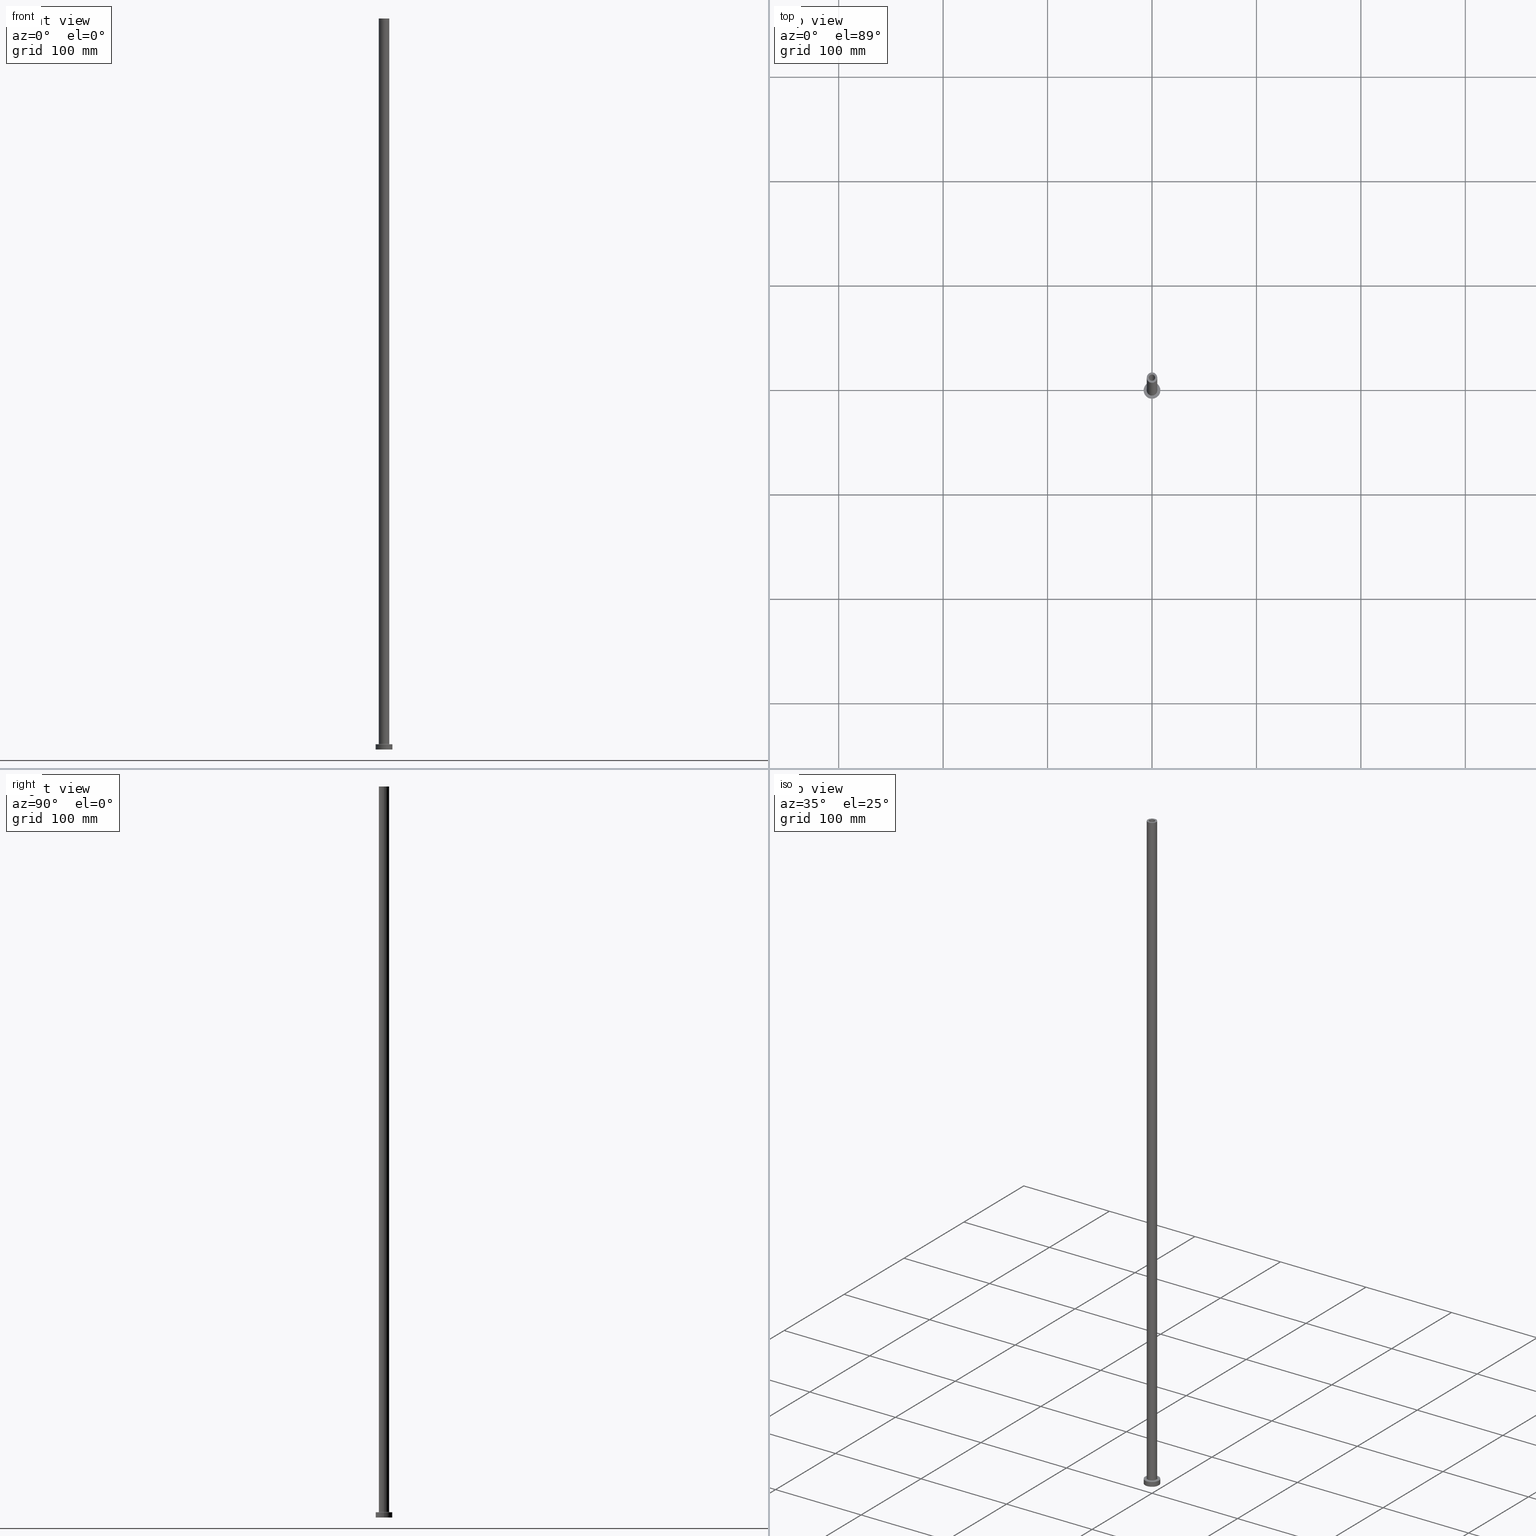
[diagram: canonical four-view strip — front | top / right | iso, engineering-drawing reading convention]
A machine part, canonical four-view strip (front | top / right | iso — engineering-drawing reading convention). The complete STEP part file that produces these views, byte-faithful:
ISO-10303-21;
HEADER;
FILE_DESCRIPTION (( 'STEP AP203' ),
    '1' );
FILE_NAME ('5fc4.STEP',
    '2023-02-13T15:29:07',
    ( '' ),
    ( '' ),
    'SwSTEP 2.0',
    'SolidWorks 2019',
    '' );
FILE_SCHEMA (( 'CONFIG_CONTROL_DESIGN' ));
ENDSEC;

DATA;
#1 = FACE_BOUND ( 'NONE', #67, .T. ) ;
#2 = VERTEX_POINT ( 'NONE', #197 ) ;
#3 = PERSON_AND_ORGANIZATION ( #171, #285 ) ;
#4 = CARTESIAN_POINT ( 'NONE',  ( -3.150000000000000355, 0.000000000000000000, 0.000000000000000000 ) ) ;
#5 = ORIENTED_EDGE ( 'NONE', *, *, #411, .F. ) ;
#6 = CALENDAR_DATE ( 2023, 13, 2 ) ;
#7 = AXIS2_PLACEMENT_3D ( 'NONE', #39, #359, #182 ) ;
#8 = CARTESIAN_POINT ( 'NONE',  ( 8.000000000000000000, 9.797174393178825657E-16, 5.000000000000000000 ) ) ;
#9 = EDGE_LOOP ( 'NONE', ( #384, #28 ) ) ;
#10 = CARTESIAN_POINT ( 'NONE',  ( -8.000000000000000000, 0.000000000000000000, 5.000000000000000000 ) ) ;
#11 = ORIENTED_EDGE ( 'NONE', *, *, #102, .T. ) ;
#12 = PERSON_AND_ORGANIZATION_ROLE ( 'design_owner' ) ;
#13 =( NAMED_UNIT ( * ) SI_UNIT ( $, .STERADIAN. ) SOLID_ANGLE_UNIT ( ) );
#14 = ORIENTED_EDGE ( 'NONE', *, *, #186, .T. ) ;
#15 = DATE_AND_TIME ( #338, #445 ) ;
#16 = AXIS2_PLACEMENT_3D ( 'NONE', #321, #458, #427 ) ;
#17 = CARTESIAN_POINT ( 'NONE',  ( 0.000000000000000000, 0.000000000000000000, 700.0000000000000000 ) ) ;
#18 = ADVANCED_FACE ( 'NONE', ( #315 ), #91, .T. ) ;
#19 = FACE_OUTER_BOUND ( 'NONE', #431, .T. ) ;
#20 = CARTESIAN_POINT ( 'NONE',  ( 8.000000000000000000, 9.797174393178825657E-16, 0.000000000000000000 ) ) ;
#21 = AXIS2_PLACEMENT_3D ( 'NONE', #255, #187, #334 ) ;
#22 = DIRECTION ( 'NONE',  ( 0.000000000000000000, 0.000000000000000000, 1.000000000000000000 ) ) ;
#23 = DIRECTION ( 'NONE',  ( 0.000000000000000000, 0.000000000000000000, 1.000000000000000000 ) ) ;
#24 = LOCAL_TIME ( 16, 29, 7.000000000000000000, #310 ) ;
#25 = VERTEX_POINT ( 'NONE', #417 ) ;
#26 = FACE_OUTER_BOUND ( 'NONE', #403, .T. ) ;
#27 = DIRECTION ( 'NONE',  ( 1.000000000000000000, 0.000000000000000000, 0.000000000000000000 ) ) ;
#28 = ORIENTED_EDGE ( 'NONE', *, *, #267, .F. ) ;
#29 = APPROVAL ( #222, 'NEUR�EN�' ) ;
#30 = DIRECTION ( 'NONE',  ( 0.000000000000000000, 0.000000000000000000, 1.000000000000000000 ) ) ;
#31 = AXIS2_PLACEMENT_3D ( 'NONE', #159, #92, #409 ) ;
#32 = ADVANCED_FACE ( 'NONE', ( #376 ), #450, .F. ) ;
#33 = DIRECTION ( 'NONE',  ( 1.000000000000000000, 0.000000000000000000, 0.000000000000000000 ) ) ;
#34 = EDGE_LOOP ( 'NONE', ( #14, #397 ) ) ;
#35 = APPLICATION_PROTOCOL_DEFINITION ( 'international standard', 'config_control_design', 1994, #305 ) ;
#36 = CARTESIAN_POINT ( 'NONE',  ( -5.000000000000000000, 0.000000000000000000, 5.499999999999949374 ) ) ;
#37 = VERTEX_POINT ( 'NONE', #236 ) ;
#38 = DATE_AND_TIME ( #304, #389 ) ;
#39 = CARTESIAN_POINT ( 'NONE',  ( 0.000000000000000000, 0.000000000000000000, 5.000000000000000000 ) ) ;
#40 = ORIENTED_EDGE ( 'NONE', *, *, #314, .F. ) ;
#41 = CARTESIAN_POINT ( 'NONE',  ( 0.000000000000000000, 0.000000000000000000, 0.000000000000000000 ) ) ;
#42 = CLOSED_SHELL ( 'NONE', ( #289, #190, #32, #364, #161, #18, #212, #172, #246, #346, #226, #294, #259, #196 ) ) ;
#43 = CIRCLE ( 'NONE', #148, 5.000000000000000000 ) ;
#44 = DIRECTION ( 'NONE',  ( -0.000000000000000000, -0.000000000000000000, -1.000000000000000000 ) ) ;
#45 = VERTEX_POINT ( 'NONE', #340 ) ;
#46 = ORIENTED_EDGE ( 'NONE', *, *, #363, .T. ) ;
#47 = APPLICATION_PROTOCOL_DEFINITION ( 'international standard', 'config_control_design', 1994, #351 ) ;
#48 = APPROVAL ( #331, 'NEUR�EN�' ) ;
#49 = DIRECTION ( 'NONE',  ( 0.000000000000000000, 0.000000000000000000, 1.000000000000000000 ) ) ;
#50 = EDGE_CURVE ( 'NONE', #434, #37, #405, .T. ) ;
#51 = AXIS2_PLACEMENT_3D ( 'NONE', #414, #162, #155 ) ;
#52 = CC_DESIGN_APPROVAL ( #48, ( #200 ) ) ;
#53 = FACE_OUTER_BOUND ( 'NONE', #115, .T. ) ;
#54 = EDGE_CURVE ( 'NONE', #373, #367, #63, .T. ) ;
#55 = DIRECTION ( 'NONE',  ( -0.000000000000000000, -0.000000000000000000, -1.000000000000000000 ) ) ;
#56 = CIRCLE ( 'NONE', #94, 5.000000000000000000 ) ;
#57 = DIRECTION ( 'NONE',  ( 1.000000000000000000, 0.000000000000000000, 0.000000000000000000 ) ) ;
#58 = CARTESIAN_POINT ( 'NONE',  ( 0.000000000000000000, 0.000000000000000000, 5.499999999999949374 ) ) ;
#59 = EDGE_CURVE ( 'NONE', #137, #104, #168, .T. ) ;
#60 = DIRECTION ( 'NONE',  ( 1.000000000000000000, 0.000000000000000000, 0.000000000000000000 ) ) ;
#61 = ORIENTED_EDGE ( 'NONE', *, *, #308, .F. ) ;
#62 = DIRECTION ( 'NONE',  ( -0.000000000000000000, -0.000000000000000000, -1.000000000000000000 ) ) ;
#63 = CIRCLE ( 'NONE', #110, 3.000000000000000444 ) ;
#64 = ORIENTED_EDGE ( 'NONE', *, *, #54, .T. ) ;
#65 = MANIFOLD_SOLID_BREP ( 'Odebrat vysunut�m4', #42 ) ;
#66 = DIRECTION ( 'NONE',  ( 0.000000000000000000, 0.000000000000000000, -1.000000000000000000 ) ) ;
#67 = EDGE_LOOP ( 'NONE', ( #211, #302 ) ) ;
#68 = UNCERTAINTY_MEASURE_WITH_UNIT (LENGTH_MEASURE( 1.000000000000000082E-05 ), #117, 'distance_accuracy_value', 'NONE');
#69 = CARTESIAN_POINT ( 'NONE',  ( 0.000000000000000000, 0.000000000000000000, 700.0000000000000000 ) ) ;
#70 = ORIENTED_EDGE ( 'NONE', *, *, #425, .F. ) ;
#71 = DIRECTION ( 'NONE',  ( -1.000000000000000000, 0.000000000000000000, 0.000000000000000000 ) ) ;
#72 = ORIENTED_EDGE ( 'NONE', *, *, #279, .T. ) ;
#73 = CIRCLE ( 'NONE', #413, 5.500000000000000000 ) ;
#74 = CARTESIAN_POINT ( 'NONE',  ( -5.500000000000000000, 6.735557395310442023E-16, 4.999999999999975131 ) ) ;
#75 = ORIENTED_EDGE ( 'NONE', *, *, #123, .F. ) ;
#76 = SHAPE_DEFINITION_REPRESENTATION ( #240, #218 ) ;
#77 = DIRECTION ( 'NONE',  ( -0.000000000000000000, -0.000000000000000000, -1.000000000000000000 ) ) ;
#78 = ORIENTED_EDGE ( 'NONE', *, *, #270, .T. ) ;
#79 = PERSON_AND_ORGANIZATION_ROLE ( 'classification_officer' ) ;
#80 = DIRECTION ( 'NONE',  ( 0.000000000000000000, 0.000000000000000000, 1.000000000000000000 ) ) ;
#81 = ORIENTED_EDGE ( 'NONE', *, *, #324, .F. ) ;
#82 = APPROVAL_ROLE ( '' ) ;
#83 = CC_DESIGN_APPROVAL ( #230, ( #165 ) ) ;
#84 = CARTESIAN_POINT ( 'NONE',  ( 0.000000000000000000, 0.000000000000000000, 5.499999999999949374 ) ) ;
#85 = ORIENTED_EDGE ( 'NONE', *, *, #208, .F. ) ;
#86 = PERSON_AND_ORGANIZATION ( #171, #285 ) ;
#87 = EDGE_CURVE ( 'NONE', #367, #2, #311, .T. ) ;
#88 = DIRECTION ( 'NONE',  ( 0.000000000000000000, 0.000000000000000000, -1.000000000000000000 ) ) ;
#89 = CARTESIAN_POINT ( 'NONE',  ( 0.000000000000000000, 0.000000000000000000, 0.000000000000000000 ) ) ;
#90 = AXIS2_PLACEMENT_3D ( 'NONE', #169, #242, #430 ) ;
#91 = CYLINDRICAL_SURFACE ( 'NONE', #31, 8.000000000000000000 ) ;
#92 = DIRECTION ( 'NONE',  ( -0.000000000000000000, -0.000000000000000000, -1.000000000000000000 ) ) ;
#93 = CARTESIAN_POINT ( 'NONE',  ( 0.000000000000000000, 0.000000000000000000, 663.9095454429503889 ) ) ;
#94 = AXIS2_PLACEMENT_3D ( 'NONE', #84, #30, #33 ) ;
#95 = AXIS2_PLACEMENT_3D ( 'NONE', #89, #272, #275 ) ;
#96 = FACE_BOUND ( 'NONE', #400, .T. ) ;
#97 = PRODUCT_DEFINITION_FORMATION_WITH_SPECIFIED_SOURCE ( 'LIBOVOLN�', '', #353, .NOT_KNOWN. ) ;
#98 = CC_DESIGN_PERSON_AND_ORGANIZATION_ASSIGNMENT ( #266, #441, ( #165 ) ) ;
#99 = DIRECTION ( 'NONE',  ( -1.000000000000000000, 0.000000000000000000, 0.000000000000000000 ) ) ;
#100 = CARTESIAN_POINT ( 'NONE',  ( 0.000000000000000000, 0.000000000000000000, 700.0000000000000000 ) ) ;
#101 = FACE_OUTER_BOUND ( 'NONE', #287, .T. ) ;
#102 = EDGE_CURVE ( 'NONE', #373, #204, #342, .T. ) ;
#103 = APPROVAL_PERSON_ORGANIZATION ( #254, #230, #398 ) ;
#104 = VERTEX_POINT ( 'NONE', #160 ) ;
#105 = DIRECTION ( 'NONE',  ( 1.000000000000000000, 0.000000000000000000, 0.000000000000000000 ) ) ;
#106 = FACE_OUTER_BOUND ( 'NONE', #217, .T. ) ;
#107 = ORIENTED_EDGE ( 'NONE', *, *, #303, .T. ) ;
#108 = DIRECTION ( 'NONE',  ( 0.000000000000000000, 0.000000000000000000, 1.000000000000000000 ) ) ;
#109 = ORIENTED_EDGE ( 'NONE', *, *, #59, .T. ) ;
#110 = AXIS2_PLACEMENT_3D ( 'NONE', #17, #121, #57 ) ;
#111 = COORDINATED_UNIVERSAL_TIME_OFFSET ( 1, 0, .AHEAD. ) ;
#112 = CARTESIAN_POINT ( 'NONE',  ( 0.000000000000000000, 0.000000000000000000, 654.9999999999998863 ) ) ;
#113 = VERTEX_POINT ( 'NONE', #341 ) ;
#114 = CARTESIAN_POINT ( 'NONE',  ( -3.000000000000000444, 0.000000000000000000, 700.0000000000000000 ) ) ;
#115 = EDGE_LOOP ( 'NONE', ( #150, #85 ) ) ;
#116 = PERSON_AND_ORGANIZATION_ROLE ( 'creator' ) ;
#117 =( LENGTH_UNIT ( ) NAMED_UNIT ( * ) SI_UNIT ( .MILLI., .METRE. ) );
#118 = ORIENTED_EDGE ( 'NONE', *, *, #141, .F. ) ;
#119 = DATE_TIME_ROLE ( 'creation_date' ) ;
#120 = VECTOR ( 'NONE', #449, 1000.000000000000000 ) ;
#121 = DIRECTION ( 'NONE',  ( 0.000000000000000000, 0.000000000000000000, 1.000000000000000000 ) ) ;
#122 = LINE ( 'NONE', #343, #250 ) ;
#123 = EDGE_CURVE ( 'NONE', #456, #45, #268, .T. ) ;
#124 = CARTESIAN_POINT ( 'NONE',  ( 0.000000000000000000, 0.000000000000000000, 5.000000000000000000 ) ) ;
#125 = CIRCLE ( 'NONE', #237, 5.000000000000000000 ) ;
#126 = CC_DESIGN_PERSON_AND_ORGANIZATION_ASSIGNMENT ( #365, #12, ( #353 ) ) ;
#127 = CYLINDRICAL_SURFACE ( 'NONE', #368, 8.000000000000000000 ) ;
#128 = CARTESIAN_POINT ( 'NONE',  ( 8.000000000000000000, 9.797174393178825657E-16, 5.000000000000000000 ) ) ;
#129 = DIRECTION ( 'NONE',  ( 1.000000000000000000, 0.000000000000000000, 0.000000000000000000 ) ) ;
#130 = CC_DESIGN_PERSON_AND_ORGANIZATION_ASSIGNMENT ( #269, #410, ( #97 ) ) ;
#131 = AXIS2_PLACEMENT_3D ( 'NONE', #93, #345, #306 ) ;
#132 = EDGE_CURVE ( 'NONE', #248, #360, #122, .T. ) ;
#133 = CYLINDRICAL_SURFACE ( 'NONE', #395, 3.150000000000000355 ) ;
#134 = CARTESIAN_POINT ( 'NONE',  ( 0.000000000000000000, 0.000000000000000000, 0.000000000000000000 ) ) ;
#135 = CC_DESIGN_PERSON_AND_ORGANIZATION_ASSIGNMENT ( #86, #79, ( #200 ) ) ;
#136 = DIRECTION ( 'NONE',  ( -0.000000000000000000, -0.000000000000000000, -1.000000000000000000 ) ) ;
#137 = VERTEX_POINT ( 'NONE', #128 ) ;
#138 = CYLINDRICAL_SURFACE ( 'NONE', #382, 5.000000000000000000 ) ;
#139 = VECTOR ( 'NONE', #55, 1000.000000000000000 ) ;
#140 = AXIS2_PLACEMENT_3D ( 'NONE', #41, #189, #192 ) ;
#141 = EDGE_CURVE ( 'NONE', #113, #37, #416, .T. ) ;
#142 = DIRECTION ( 'NONE',  ( 1.000000000000000000, 0.000000000000000000, 0.000000000000000000 ) ) ;
#143 = EDGE_LOOP ( 'NONE', ( #330, #423, #320, #355 ) ) ;
#144 = SECURITY_CLASSIFICATION_LEVEL ( 'unclassified' ) ;
#145 = CARTESIAN_POINT ( 'NONE',  ( 0.000000000000000000, 0.000000000000000000, 700.0000000000000000 ) ) ;
#146 = ORIENTED_EDGE ( 'NONE', *, *, #235, .F. ) ;
#147 = AXIS2_PLACEMENT_3D ( 'NONE', #418, #383, #105 ) ;
#148 = AXIS2_PLACEMENT_3D ( 'NONE', #296, #80, #291 ) ;
#149 = DIRECTION ( 'NONE',  ( 0.000000000000000000, 0.000000000000000000, 1.000000000000000000 ) ) ;
#150 = ORIENTED_EDGE ( 'NONE', *, *, #363, .F. ) ;
#151 = COORDINATED_UNIVERSAL_TIME_OFFSET ( 1, 0, .AHEAD. ) ;
#152 = DIRECTION ( 'NONE',  ( -0.000000000000000000, -0.000000000000000000, -1.000000000000000000 ) ) ;
#153 = ORIENTED_EDGE ( 'NONE', *, *, #208, .T. ) ;
#154 = APPROVAL_DATE_TIME ( #336, #230 ) ;
#155 = DIRECTION ( 'NONE',  ( 1.000000000000000000, 0.000000000000000000, 0.000000000000000000 ) ) ;
#156 = CIRCLE ( 'NONE', #419, 8.000000000000000000 ) ;
#157 = APPROVAL_ROLE ( '' ) ;
#158 = LOCAL_TIME ( 16, 29, 7.000000000000000000, #179 ) ;
#159 = CARTESIAN_POINT ( 'NONE',  ( 0.000000000000000000, 0.000000000000000000, 5.000000000000000000 ) ) ;
#160 = CARTESIAN_POINT ( 'NONE',  ( -8.000000000000000000, 0.000000000000000000, 5.000000000000000000 ) ) ;
#161 = ADVANCED_FACE ( 'NONE', ( #19 ), #127, .T. ) ;
#162 = DIRECTION ( 'NONE',  ( 0.000000000000000000, 0.000000000000000000, 1.000000000000000000 ) ) ;
#163 = CIRCLE ( 'NONE', #147, 8.000000000000000000 ) ;
#164 = FACE_OUTER_BOUND ( 'NONE', #143, .T. ) ;
#165 = PRODUCT_DEFINITION ( 'NEZN�M�', '', #97, #390 ) ;
#166 = DIRECTION ( 'NONE',  ( 0.000000000000000000, 0.000000000000000000, 1.000000000000000000 ) ) ;
#167 = CYLINDRICAL_SURFACE ( 'NONE', #176, 3.000000000000000444 ) ;
#168 = CIRCLE ( 'NONE', #51, 8.000000000000000000 ) ;
#169 = CARTESIAN_POINT ( 'NONE',  ( 0.000000000000000000, 0.000000000000000000, 654.9999999999998863 ) ) ;
#170 = ORIENTED_EDGE ( 'NONE', *, *, #426, .T. ) ;
#171 = PERSON ( 'NEUR�EN�', 'NEUR�EN�', 'NEUR�EN�', ('NEUR�EN�'), ('NEUR�EN�'), ('NEUR�EN�') ) ;
#172 = ADVANCED_FACE ( 'NONE', ( #274, #53 ), #198, .F. ) ;
#173 = CARTESIAN_POINT ( 'NONE',  ( 0.000000000000000000, 0.000000000000000000, 5.000000000000000000 ) ) ;
#174 = ORIENTED_EDGE ( 'NONE', *, *, #50, .T. ) ;
#175 = DIRECTION ( 'NONE',  ( 1.000000000000000000, 0.000000000000000000, 0.000000000000000000 ) ) ;
#176 = AXIS2_PLACEMENT_3D ( 'NONE', #202, #385, #347 ) ;
#177 = CYLINDRICAL_SURFACE ( 'NONE', #339, 5.000000000000000000 ) ;
#178 = EDGE_LOOP ( 'NONE', ( #317, #107 ) ) ;
#179 = COORDINATED_UNIVERSAL_TIME_OFFSET ( 1, 0, .AHEAD. ) ;
#180 = DIRECTION ( 'NONE',  ( -1.000000000000000000, 1.224646799147351482E-16, 0.000000000000000000 ) ) ;
#181 = ORIENTED_EDGE ( 'NONE', *, *, #132, .T. ) ;
#182 = DIRECTION ( 'NONE',  ( 1.000000000000000000, 0.000000000000000000, 0.000000000000000000 ) ) ;
#183 = VERTEX_POINT ( 'NONE', #20 ) ;
#184 = AXIS2_PLACEMENT_3D ( 'NONE', #379, #452, #201 ) ;
#185 = MECHANICAL_CONTEXT ( 'NONE', #305, 'mechanical' ) ;
#186 = EDGE_CURVE ( 'NONE', #248, #456, #375, .T. ) ;
#187 = DIRECTION ( 'NONE',  ( -0.000000000000000000, -0.000000000000000000, -1.000000000000000000 ) ) ;
#188 = ORIENTED_EDGE ( 'NONE', *, *, #308, .T. ) ;
#189 = DIRECTION ( 'NONE',  ( 0.000000000000000000, 0.000000000000000000, 1.000000000000000000 ) ) ;
#190 = ADVANCED_FACE ( 'NONE', ( #164 ), #229, .F. ) ;
#191 = ORIENTED_EDGE ( 'NONE', *, *, #380, .T. ) ;
#192 = DIRECTION ( 'NONE',  ( 1.000000000000000000, 0.000000000000000000, 0.000000000000000000 ) ) ;
#193 = AXIS2_PLACEMENT_3D ( 'NONE', #312, #231, #446 ) ;
#194 = CIRCLE ( 'NONE', #21, 5.500000000000000000 ) ;
#195 = CARTESIAN_POINT ( 'NONE',  ( 5.000000000000000000, 6.123233995736766282E-16, 700.0000000000000000 ) ) ;
#196 = ADVANCED_FACE ( 'NONE', ( #203 ), #319, .F. ) ;
#197 = CARTESIAN_POINT ( 'NONE',  ( 3.000000000000000444, 3.673940397442060361E-16, 654.9999999999998863 ) ) ;
#198 = PLANE ( 'NONE',  #95 ) ;
#199 = AXIS2_PLACEMENT_3D ( 'NONE', #209, #352, #27 ) ;
#200 = SECURITY_CLASSIFICATION ( '', '', #144 ) ;
#201 = DIRECTION ( 'NONE',  ( 1.000000000000000000, 0.000000000000000000, 0.000000000000000000 ) ) ;
#202 = CARTESIAN_POINT ( 'NONE',  ( 0.000000000000000000, 0.000000000000000000, 700.0000000000000000 ) ) ;
#203 = FACE_OUTER_BOUND ( 'NONE', #220, .T. ) ;
#204 = VERTEX_POINT ( 'NONE', #422 ) ;
#205 = CIRCLE ( 'NONE', #7, 8.000000000000000000 ) ;
#206 = APPROVAL_PERSON_ORGANIZATION ( #361, #48, #82 ) ;
#207 = CARTESIAN_POINT ( 'NONE',  ( -3.150000000000000355, 0.000000000000000000, 663.9095454429503889 ) ) ;
#208 = EDGE_CURVE ( 'NONE', #183, #333, #163, .T. ) ;
#209 = CARTESIAN_POINT ( 'NONE',  ( 0.000000000000000000, 0.000000000000000000, 654.9999999999998863 ) ) ;
#210 = FACE_BOUND ( 'NONE', #178, .T. ) ;
#211 = ORIENTED_EDGE ( 'NONE', *, *, #54, .F. ) ;
#212 = ADVANCED_FACE ( 'NONE', ( #96, #348 ), #454, .T. ) ;
#213 = VECTOR ( 'NONE', #88, 1000.000000000000000 ) ;
#214 = ORIENTED_EDGE ( 'NONE', *, *, #87, .F. ) ;
#215 = DATE_TIME_ROLE ( 'classification_date' ) ;
#216 = CARTESIAN_POINT ( 'NONE',  ( -3.150000000000000355, 0.000000000000000000, 654.9999999999998863 ) ) ;
#217 = EDGE_LOOP ( 'NONE', ( #260, #300, #227, #290 ) ) ;
#218 = ADVANCED_BREP_SHAPE_REPRESENTATION ( '5fc4', ( #65, #140 ), #309 ) ;
#219 = CARTESIAN_POINT ( 'NONE',  ( 0.000000000000000000, 0.000000000000000000, 700.0000000000000000 ) ) ;
#220 = EDGE_LOOP ( 'NONE', ( #214, #78, #11, #440 ) ) ;
#221 = CC_DESIGN_PERSON_AND_ORGANIZATION_ASSIGNMENT ( #401, #116, ( #97 ) ) ;
#222 = APPROVAL_STATUS ( 'not_yet_approved' ) ;
#223 = DIRECTION ( 'NONE',  ( 1.000000000000000000, 0.000000000000000000, 0.000000000000000000 ) ) ;
#224 = ORIENTED_EDGE ( 'NONE', *, *, #432, .F. ) ;
#225 = VECTOR ( 'NONE', #44, 1000.000000000000000 ) ;
#226 = ADVANCED_FACE ( 'NONE', ( #26 ), #295, .F. ) ;
#227 = ORIENTED_EDGE ( 'NONE', *, *, #314, .T. ) ;
#228 = COORDINATED_UNIVERSAL_TIME_OFFSET ( 1, 0, .AHEAD. ) ;
#229 = CYLINDRICAL_SURFACE ( 'NONE', #131, 3.150000000000000355 ) ;
#230 = APPROVAL ( #257, 'NEUR�EN�' ) ;
#231 = DIRECTION ( 'NONE',  ( 0.000000000000000000, 0.000000000000000000, 1.000000000000000000 ) ) ;
#232 = VECTOR ( 'NONE', #350, 1000.000000000000000 ) ;
#233 = CARTESIAN_POINT ( 'NONE',  ( 0.000000000000000000, 0.000000000000000000, 5.499999999999949374 ) ) ;
#234 = DIRECTION ( 'NONE',  ( 1.000000000000000000, 0.000000000000000000, 0.000000000000000000 ) ) ;
#235 = EDGE_CURVE ( 'NONE', #360, #45, #125, .T. ) ;
#236 = CARTESIAN_POINT ( 'NONE',  ( 3.150000000000000355, 3.857637417314163182E-16, 0.000000000000000000 ) ) ;
#237 = AXIS2_PLACEMENT_3D ( 'NONE', #457, #22, #129 ) ;
#238 = FACE_OUTER_BOUND ( 'NONE', #325, .T. ) ;
#239 = PLANE ( 'NONE',  #90 ) ;
#240 = PRODUCT_DEFINITION_SHAPE ( 'NONE', 'NONE',  #165 ) ;
#241 = PRODUCT_RELATED_PRODUCT_CATEGORY ( 'detail', '', ( #353 ) ) ;
#242 = DIRECTION ( 'NONE',  ( 0.000000000000000000, 0.000000000000000000, 1.000000000000000000 ) ) ;
#243 = ORIENTED_EDGE ( 'NONE', *, *, #432, .T. ) ;
#244 = CIRCLE ( 'NONE', #199, 3.000000000000000444 ) ;
#245 = DIRECTION ( 'NONE',  ( 1.000000000000000000, 0.000000000000000000, 0.000000000000000000 ) ) ;
#246 = ADVANCED_FACE ( 'NONE', ( #424 ), #138, .T. ) ;
#247 = DIRECTION ( 'NONE',  ( 1.000000000000000000, 0.000000000000000000, 0.000000000000000000 ) ) ;
#248 = VERTEX_POINT ( 'NONE', #276 ) ;
#249 = ORIENTED_EDGE ( 'NONE', *, *, #324, .T. ) ;
#250 = VECTOR ( 'NONE', #374, 1000.000000000000000 ) ;
#251 = LINE ( 'NONE', #8, #225 ) ;
#252 = VECTOR ( 'NONE', #152, 1000.000000000000000 ) ;
#253 = ORIENTED_EDGE ( 'NONE', *, *, #186, .F. ) ;
#254 = PERSON_AND_ORGANIZATION ( #171, #285 ) ;
#255 = CARTESIAN_POINT ( 'NONE',  ( 0.000000000000000000, 0.000000000000000000, 5.000000000000000000 ) ) ;
#256 = ORIENTED_EDGE ( 'NONE', *, *, #279, .F. ) ;
#257 = APPROVAL_STATUS ( 'not_yet_approved' ) ;
#258 = DIRECTION ( 'NONE',  ( 1.000000000000000000, 0.000000000000000000, -0.000000000000000000 ) ) ;
#259 = ADVANCED_FACE ( 'NONE', ( #210, #286 ), #239, .F. ) ;
#260 = ORIENTED_EDGE ( 'NONE', *, *, #392, .F. ) ;
#261 = APPROVAL_DATE_TIME ( #408, #29 ) ;
#262 = CARTESIAN_POINT ( 'NONE',  ( 0.000000000000000000, 0.000000000000000000, 5.000000000000000000 ) ) ;
#263 = ORIENTED_EDGE ( 'NONE', *, *, #235, .T. ) ;
#264 = CIRCLE ( 'NONE', #356, 0.5000000000000004441 ) ;
#265 = CIRCLE ( 'NONE', #370, 3.000000000000000444 ) ;
#266 = PERSON_AND_ORGANIZATION ( #171, #285 ) ;
#267 = EDGE_CURVE ( 'NONE', #37, #434, #455, .T. ) ;
#268 = LINE ( 'NONE', #195, #139 ) ;
#269 = PERSON_AND_ORGANIZATION ( #171, #285 ) ;
#270 = EDGE_CURVE ( 'NONE', #367, #373, #388, .T. ) ;
#271 = CARTESIAN_POINT ( 'NONE',  ( 3.150000000000000355, 3.857637417314163182E-16, 663.9095454429503889 ) ) ;
#272 = DIRECTION ( 'NONE',  ( 0.000000000000000000, 0.000000000000000000, 1.000000000000000000 ) ) ;
#273 = CC_DESIGN_SECURITY_CLASSIFICATION ( #200, ( #97 ) ) ;
#274 = FACE_BOUND ( 'NONE', #9, .T. ) ;
#275 = DIRECTION ( 'NONE',  ( 1.000000000000000000, 0.000000000000000000, -0.000000000000000000 ) ) ;
#276 = CARTESIAN_POINT ( 'NONE',  ( -5.000000000000000000, 0.000000000000000000, 700.0000000000000000 ) ) ;
#277 = DIRECTION ( 'NONE',  ( 0.000000000000000000, -1.000000000000000000, 0.000000000000000000 ) ) ;
#278 = ORIENTED_EDGE ( 'NONE', *, *, #380, .F. ) ;
#279 = EDGE_CURVE ( 'NONE', #45, #25, #437, .T. ) ;
#280 = EDGE_CURVE ( 'NONE', #439, #434, #386, .T. ) ;
#281 = DIRECTION ( 'NONE',  ( 0.000000000000000000, 0.000000000000000000, 1.000000000000000000 ) ) ;
#282 = DIRECTION ( 'NONE',  ( 0.000000000000000000, 0.000000000000000000, -1.000000000000000000 ) ) ;
#283 = ORIENTED_EDGE ( 'NONE', *, *, #377, .T. ) ;
#284 = AXIS2_PLACEMENT_3D ( 'NONE', #173, #281, #322 ) ;
#285 = ORGANIZATION ( 'NEUR�EN�', 'NEUR�EN�', '' ) ;
#286 = FACE_OUTER_BOUND ( 'NONE', #420, .T. ) ;
#287 = EDGE_LOOP ( 'NONE', ( #118, #188, #327, #174 ) ) ;
#288 = DIRECTION ( 'NONE',  ( 0.000000000000000000, 0.000000000000000000, 1.000000000000000000 ) ) ;
#289 = ADVANCED_FACE ( 'NONE', ( #238 ), #167, .F. ) ;
#290 = ORIENTED_EDGE ( 'NONE', *, *, #132, .F. ) ;
#291 = DIRECTION ( 'NONE',  ( 1.000000000000000000, 0.000000000000000000, 0.000000000000000000 ) ) ;
#292 = EDGE_LOOP ( 'NONE', ( #75, #253, #181, #263 ) ) ;
#293 = APPROVAL_DATE_TIME ( #328, #48 ) ;
#294 = ADVANCED_FACE ( 'NONE', ( #101 ), #133, .F. ) ;
#295 = TOROIDAL_SURFACE ( 'NONE', #429, 5.500000000000000000, 0.5000000000000000000 ) ;
#296 = CARTESIAN_POINT ( 'NONE',  ( 0.000000000000000000, 0.000000000000000000, 700.0000000000000000 ) ) ;
#297 = CIRCLE ( 'NONE', #421, 3.150000000000000355 ) ;
#298 = ORIENTED_EDGE ( 'NONE', *, *, #87, .T. ) ;
#299 = CARTESIAN_POINT ( 'NONE',  ( -5.500000000000000000, 6.735557395310442023E-16, 5.499999999999949374 ) ) ;
#300 = ORIENTED_EDGE ( 'NONE', *, *, #123, .T. ) ;
#301 = CARTESIAN_POINT ( 'NONE',  ( 5.000000000000000000, 6.123233995736766282E-16, 700.0000000000000000 ) ) ;
#302 = ORIENTED_EDGE ( 'NONE', *, *, #270, .F. ) ;
#303 = EDGE_CURVE ( 'NONE', #2, #204, #244, .T. ) ;
#304 = CALENDAR_DATE ( 2023, 13, 2 ) ;
#305 = APPLICATION_CONTEXT ( 'configuration controlled 3d designs of mechanical parts and assemblies' ) ;
#306 = DIRECTION ( 'NONE',  ( -1.000000000000000000, 0.000000000000000000, 0.000000000000000000 ) ) ;
#307 = AXIS2_PLACEMENT_3D ( 'NONE', #453, #277, #282 ) ;
#308 = EDGE_CURVE ( 'NONE', #113, #439, #459, .T. ) ;
#309 =( GEOMETRIC_REPRESENTATION_CONTEXT ( 3 ) GLOBAL_UNCERTAINTY_ASSIGNED_CONTEXT ( ( #68 ) ) GLOBAL_UNIT_ASSIGNED_CONTEXT ( ( #117, #393, #13 ) ) REPRESENTATION_CONTEXT ( 'NONE', 'WORKASPACE' ) );
#310 = COORDINATED_UNIVERSAL_TIME_OFFSET ( 1, 0, .AHEAD. ) ;
#311 = LINE ( 'NONE', #447, #213 ) ;
#312 = CARTESIAN_POINT ( 'NONE',  ( 0.000000000000000000, 0.000000000000000000, 700.0000000000000000 ) ) ;
#313 = VECTOR ( 'NONE', #451, 1000.000000000000000 ) ;
#314 = EDGE_CURVE ( 'NONE', #45, #360, #56, .T. ) ;
#315 = FACE_OUTER_BOUND ( 'NONE', #442, .T. ) ;
#316 = DIRECTION ( 'NONE',  ( -1.000000000000000000, 0.000000000000000000, 0.000000000000000000 ) ) ;
#317 = ORIENTED_EDGE ( 'NONE', *, *, #407, .T. ) ;
#318 = LOCAL_TIME ( 16, 29, 7.000000000000000000, #151 ) ;
#319 = CYLINDRICAL_SURFACE ( 'NONE', #16, 3.000000000000000444 ) ;
#320 = ORIENTED_EDGE ( 'NONE', *, *, #267, .T. ) ;
#321 = CARTESIAN_POINT ( 'NONE',  ( 0.000000000000000000, 0.000000000000000000, 700.0000000000000000 ) ) ;
#322 = DIRECTION ( 'NONE',  ( 1.000000000000000000, 0.000000000000000000, -0.000000000000000000 ) ) ;
#323 = AXIS2_PLACEMENT_3D ( 'NONE', #219, #288, #258 ) ;
#324 = EDGE_CURVE ( 'NONE', #360, #406, #264, .T. ) ;
#325 = EDGE_LOOP ( 'NONE', ( #64, #298, #428, #461 ) ) ;
#326 = DIRECTION ( 'NONE',  ( -0.000000000000000000, -0.000000000000000000, -1.000000000000000000 ) ) ;
#327 = ORIENTED_EDGE ( 'NONE', *, *, #280, .T. ) ;
#328 = DATE_AND_TIME ( #6, #158 ) ;
#329 = PLANE ( 'NONE',  #323 ) ;
#330 = ORIENTED_EDGE ( 'NONE', *, *, #411, .T. ) ;
#331 = APPROVAL_STATUS ( 'not_yet_approved' ) ;
#332 = CARTESIAN_POINT ( 'NONE',  ( -8.000000000000000000, 0.000000000000000000, 0.000000000000000000 ) ) ;
#333 = VERTEX_POINT ( 'NONE', #332 ) ;
#334 = DIRECTION ( 'NONE',  ( 1.000000000000000000, 0.000000000000000000, 0.000000000000000000 ) ) ;
#335 = ORIENTED_EDGE ( 'NONE', *, *, #377, .F. ) ;
#336 = DATE_AND_TIME ( #404, #318 ) ;
#337 = ORIENTED_EDGE ( 'NONE', *, *, #426, .F. ) ;
#338 = CALENDAR_DATE ( 2023, 13, 2 ) ;
#339 = AXIS2_PLACEMENT_3D ( 'NONE', #145, #326, #71 ) ;
#340 = CARTESIAN_POINT ( 'NONE',  ( 5.000000000000000000, 6.123233995736766282E-16, 5.499999999999949374 ) ) ;
#341 = CARTESIAN_POINT ( 'NONE',  ( 3.150000000000000355, 3.857637417314163182E-16, 654.9999999999998863 ) ) ;
#342 = LINE ( 'NONE', #378, #313 ) ;
#343 = CARTESIAN_POINT ( 'NONE',  ( -5.000000000000000000, 0.000000000000000000, 700.0000000000000000 ) ) ;
#344 = AXIS2_PLACEMENT_3D ( 'NONE', #134, #136, #247 ) ;
#345 = DIRECTION ( 'NONE',  ( 0.000000000000000000, 0.000000000000000000, -1.000000000000000000 ) ) ;
#346 = ADVANCED_FACE ( 'NONE', ( #1, #362 ), #329, .T. ) ;
#347 = DIRECTION ( 'NONE',  ( -1.000000000000000000, 0.000000000000000000, 0.000000000000000000 ) ) ;
#348 = FACE_OUTER_BOUND ( 'NONE', #371, .T. ) ;
#349 = AXIS2_PLACEMENT_3D ( 'NONE', #100, #166, #60 ) ;
#350 = DIRECTION ( 'NONE',  ( 0.000000000000000000, 0.000000000000000000, -1.000000000000000000 ) ) ;
#351 = APPLICATION_CONTEXT ( 'configuration controlled 3d designs of mechanical parts and assemblies' ) ;
#352 = DIRECTION ( 'NONE',  ( 0.000000000000000000, 0.000000000000000000, 1.000000000000000000 ) ) ;
#353 = PRODUCT ( '5fc4', '5fc4', '', ( #185 ) ) ;
#354 = DIRECTION ( 'NONE',  ( 0.000000000000000000, 0.000000000000000000, 1.000000000000000000 ) ) ;
#355 = ORIENTED_EDGE ( 'NONE', *, *, #280, .F. ) ;
#356 = AXIS2_PLACEMENT_3D ( 'NONE', #299, #438, #180 ) ;
#357 = AXIS2_PLACEMENT_3D ( 'NONE', #366, #354, #460 ) ;
#358 = APPROVAL_PERSON_ORGANIZATION ( #3, #29, #157 ) ;
#359 = DIRECTION ( 'NONE',  ( 0.000000000000000000, 0.000000000000000000, 1.000000000000000000 ) ) ;
#360 = VERTEX_POINT ( 'NONE', #36 ) ;
#361 = PERSON_AND_ORGANIZATION ( #171, #285 ) ;
#362 = FACE_OUTER_BOUND ( 'NONE', #34, .T. ) ;
#363 = EDGE_CURVE ( 'NONE', #333, #183, #156, .T. ) ;
#364 = ADVANCED_FACE ( 'NONE', ( #106 ), #177, .T. ) ;
#365 = PERSON_AND_ORGANIZATION ( #171, #285 ) ;
#366 = CARTESIAN_POINT ( 'NONE',  ( 0.000000000000000000, 0.000000000000000000, 654.9999999999998863 ) ) ;
#367 = VERTEX_POINT ( 'NONE', #402 ) ;
#368 = AXIS2_PLACEMENT_3D ( 'NONE', #124, #381, #412 ) ;
#369 = DIRECTION ( 'NONE',  ( 1.000000000000000000, 0.000000000000000000, 0.000000000000000000 ) ) ;
#370 = AXIS2_PLACEMENT_3D ( 'NONE', #435, #433, #223 ) ;
#371 = EDGE_LOOP ( 'NONE', ( #191, #109 ) ) ;
#372 = CC_DESIGN_DATE_AND_TIME_ASSIGNMENT ( #15, #215, ( #200 ) ) ;
#373 = VERTEX_POINT ( 'NONE', #114 ) ;
#374 = DIRECTION ( 'NONE',  ( -0.000000000000000000, -0.000000000000000000, -1.000000000000000000 ) ) ;
#375 = CIRCLE ( 'NONE', #193, 5.000000000000000000 ) ;
#376 = FACE_OUTER_BOUND ( 'NONE', #436, .T. ) ;
#377 = EDGE_CURVE ( 'NONE', #406, #25, #73, .T. ) ;
#378 = CARTESIAN_POINT ( 'NONE',  ( -3.000000000000000444, 0.000000000000000000, 700.0000000000000000 ) ) ;
#379 = CARTESIAN_POINT ( 'NONE',  ( 0.000000000000000000, 0.000000000000000000, 0.000000000000000000 ) ) ;
#380 = EDGE_CURVE ( 'NONE', #104, #137, #205, .T. ) ;
#381 = DIRECTION ( 'NONE',  ( -0.000000000000000000, -0.000000000000000000, -1.000000000000000000 ) ) ;
#382 = AXIS2_PLACEMENT_3D ( 'NONE', #69, #62, #316 ) ;
#383 = DIRECTION ( 'NONE',  ( 0.000000000000000000, 0.000000000000000000, 1.000000000000000000 ) ) ;
#384 = ORIENTED_EDGE ( 'NONE', *, *, #50, .F. ) ;
#385 = DIRECTION ( 'NONE',  ( 0.000000000000000000, 0.000000000000000000, -1.000000000000000000 ) ) ;
#386 = LINE ( 'NONE', #207, #232 ) ;
#387 = ORIENTED_EDGE ( 'NONE', *, *, #425, .T. ) ;
#388 = CIRCLE ( 'NONE', #349, 3.000000000000000444 ) ;
#389 = LOCAL_TIME ( 16, 29, 7.000000000000000000, #111 ) ;
#390 = DESIGN_CONTEXT ( 'detailed design', #351, 'design' ) ;
#391 = CARTESIAN_POINT ( 'NONE',  ( 0.000000000000000000, 0.000000000000000000, 663.9095454429503889 ) ) ;
#392 = EDGE_CURVE ( 'NONE', #456, #248, #43, .T. ) ;
#393 =( NAMED_UNIT ( * ) PLANE_ANGLE_UNIT ( ) SI_UNIT ( $, .RADIAN. ) );
#394 = ORIENTED_EDGE ( 'NONE', *, *, #59, .F. ) ;
#395 = AXIS2_PLACEMENT_3D ( 'NONE', #391, #66, #99 ) ;
#396 = LINE ( 'NONE', #10, #252 ) ;
#397 = ORIENTED_EDGE ( 'NONE', *, *, #392, .T. ) ;
#398 = APPROVAL_ROLE ( '' ) ;
#399 = CARTESIAN_POINT ( 'NONE',  ( 0.000000000000000000, 0.000000000000000000, 0.000000000000000000 ) ) ;
#400 = EDGE_LOOP ( 'NONE', ( #170, #283 ) ) ;
#401 = PERSON_AND_ORGANIZATION ( #171, #285 ) ;
#402 = CARTESIAN_POINT ( 'NONE',  ( 3.000000000000000444, 3.673940397442060361E-16, 700.0000000000000000 ) ) ;
#403 = EDGE_LOOP ( 'NONE', ( #81, #40, #72, #335 ) ) ;
#404 = CALENDAR_DATE ( 2023, 13, 2 ) ;
#405 = CIRCLE ( 'NONE', #184, 3.150000000000000355 ) ;
#406 = VERTEX_POINT ( 'NONE', #74 ) ;
#407 = EDGE_CURVE ( 'NONE', #204, #2, #265, .T. ) ;
#408 = DATE_AND_TIME ( #443, #24 ) ;
#409 = DIRECTION ( 'NONE',  ( -1.000000000000000000, 0.000000000000000000, 0.000000000000000000 ) ) ;
#410 = PERSON_AND_ORGANIZATION_ROLE ( 'design_supplier' ) ;
#411 = EDGE_CURVE ( 'NONE', #439, #113, #297, .T. ) ;
#412 = DIRECTION ( 'NONE',  ( -1.000000000000000000, 0.000000000000000000, 0.000000000000000000 ) ) ;
#413 = AXIS2_PLACEMENT_3D ( 'NONE', #262, #77, #175 ) ;
#414 = CARTESIAN_POINT ( 'NONE',  ( 0.000000000000000000, 0.000000000000000000, 5.000000000000000000 ) ) ;
#415 = CC_DESIGN_APPROVAL ( #29, ( #97 ) ) ;
#416 = LINE ( 'NONE', #271, #120 ) ;
#417 = CARTESIAN_POINT ( 'NONE',  ( 5.500000000000000000, 0.000000000000000000, 4.999999999999975131 ) ) ;
#418 = CARTESIAN_POINT ( 'NONE',  ( 0.000000000000000000, 0.000000000000000000, 0.000000000000000000 ) ) ;
#419 = AXIS2_PLACEMENT_3D ( 'NONE', #399, #149, #142 ) ;
#420 = EDGE_LOOP ( 'NONE', ( #5, #61 ) ) ;
#421 = AXIS2_PLACEMENT_3D ( 'NONE', #112, #108, #369 ) ;
#422 = CARTESIAN_POINT ( 'NONE',  ( -3.000000000000000444, 0.000000000000000000, 654.9999999999998863 ) ) ;
#423 = ORIENTED_EDGE ( 'NONE', *, *, #141, .T. ) ;
#424 = FACE_OUTER_BOUND ( 'NONE', #292, .T. ) ;
#425 = EDGE_CURVE ( 'NONE', #137, #183, #251, .T. ) ;
#426 = EDGE_CURVE ( 'NONE', #25, #406, #194, .T. ) ;
#427 = DIRECTION ( 'NONE',  ( -1.000000000000000000, 0.000000000000000000, 0.000000000000000000 ) ) ;
#428 = ORIENTED_EDGE ( 'NONE', *, *, #407, .F. ) ;
#429 = AXIS2_PLACEMENT_3D ( 'NONE', #58, #23, #245 ) ;
#430 = DIRECTION ( 'NONE',  ( 1.000000000000000000, 0.000000000000000000, -0.000000000000000000 ) ) ;
#431 = EDGE_LOOP ( 'NONE', ( #394, #387, #153, #224 ) ) ;
#432 = EDGE_CURVE ( 'NONE', #104, #333, #396, .T. ) ;
#433 = DIRECTION ( 'NONE',  ( 0.000000000000000000, 0.000000000000000000, 1.000000000000000000 ) ) ;
#434 = VERTEX_POINT ( 'NONE', #4 ) ;
#435 = CARTESIAN_POINT ( 'NONE',  ( 0.000000000000000000, 0.000000000000000000, 654.9999999999998863 ) ) ;
#436 = EDGE_LOOP ( 'NONE', ( #146, #249, #337, #256 ) ) ;
#437 = CIRCLE ( 'NONE', #307, 0.5000000000000004441 ) ;
#438 = DIRECTION ( 'NONE',  ( 1.224646799147353207E-16, 1.000000000000000000, -0.000000000000000000 ) ) ;
#439 = VERTEX_POINT ( 'NONE', #216 ) ;
#440 = ORIENTED_EDGE ( 'NONE', *, *, #303, .F. ) ;
#441 = PERSON_AND_ORGANIZATION_ROLE ( 'creator' ) ;
#442 = EDGE_LOOP ( 'NONE', ( #70, #278, #243, #46 ) ) ;
#443 = CALENDAR_DATE ( 2023, 13, 2 ) ;
#444 = AXIS2_PLACEMENT_3D ( 'NONE', #233, #49, #234 ) ;
#445 = LOCAL_TIME ( 16, 29, 7.000000000000000000, #228 ) ;
#446 = DIRECTION ( 'NONE',  ( 1.000000000000000000, 0.000000000000000000, 0.000000000000000000 ) ) ;
#447 = CARTESIAN_POINT ( 'NONE',  ( 3.000000000000000444, 3.673940397442060361E-16, 700.0000000000000000 ) ) ;
#448 = CC_DESIGN_DATE_AND_TIME_ASSIGNMENT ( #38, #119, ( #165 ) ) ;
#449 = DIRECTION ( 'NONE',  ( 0.000000000000000000, 0.000000000000000000, -1.000000000000000000 ) ) ;
#450 = TOROIDAL_SURFACE ( 'NONE', #444, 5.500000000000000000, 0.5000000000000000000 ) ;
#451 = DIRECTION ( 'NONE',  ( 0.000000000000000000, 0.000000000000000000, -1.000000000000000000 ) ) ;
#452 = DIRECTION ( 'NONE',  ( -0.000000000000000000, -0.000000000000000000, -1.000000000000000000 ) ) ;
#453 = CARTESIAN_POINT ( 'NONE',  ( 5.500000000000000000, 0.000000000000000000, 5.499999999999949374 ) ) ;
#454 = PLANE ( 'NONE',  #284 ) ;
#455 = CIRCLE ( 'NONE', #344, 3.150000000000000355 ) ;
#456 = VERTEX_POINT ( 'NONE', #301 ) ;
#457 = CARTESIAN_POINT ( 'NONE',  ( 0.000000000000000000, 0.000000000000000000, 5.499999999999949374 ) ) ;
#458 = DIRECTION ( 'NONE',  ( 0.000000000000000000, 0.000000000000000000, -1.000000000000000000 ) ) ;
#459 = CIRCLE ( 'NONE', #357, 3.150000000000000355 ) ;
#460 = DIRECTION ( 'NONE',  ( 1.000000000000000000, 0.000000000000000000, 0.000000000000000000 ) ) ;
#461 = ORIENTED_EDGE ( 'NONE', *, *, #102, .F. ) ;
ENDSEC;
END-ISO-10303-21;
